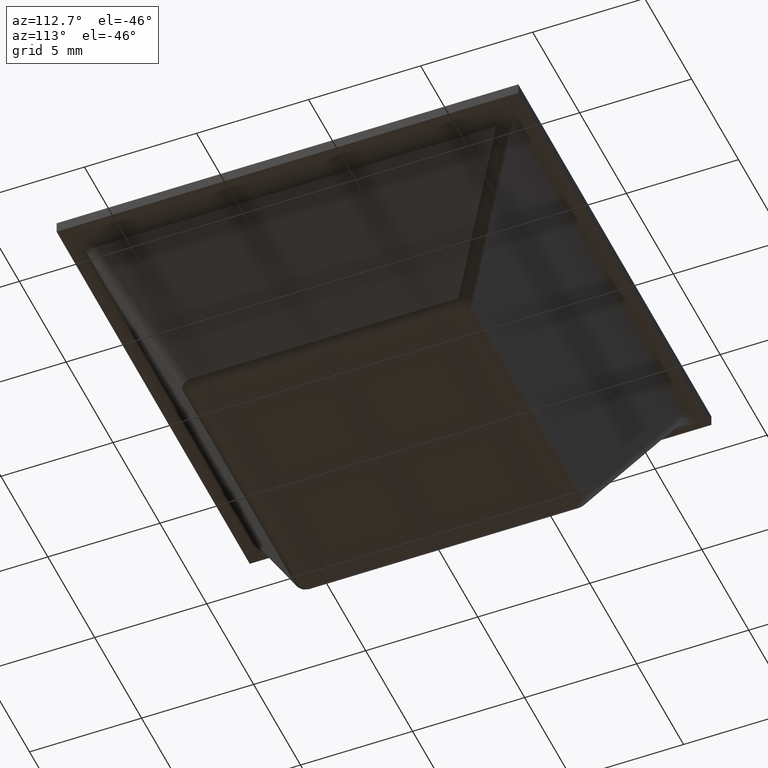
[diagram: clean part render]
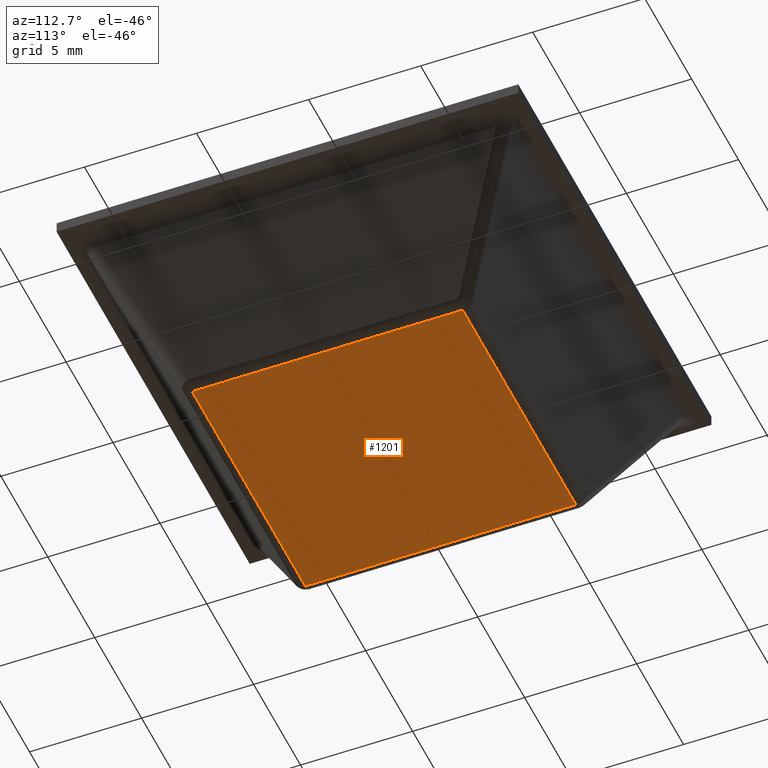
[diagram: same view with one face highlighted and labeled with its STEP entity id]
A machine part, auxiliary view. The second image highlights one B-rep face of the part: STEP entity #1201.
In plain terms, the highlighted face is a freeform B-spline surface patch.
Its self-contained STEP definition (entity closure, byte-faithful):
#85=CARTESIAN_POINT('',(6.031465045455790,-6.031465045455790,0.0));
#86=VERTEX_POINT('',#85);
#249=CARTESIAN_POINT('',(-6.031465045455790,-6.031465045455790,0.0));
#250=VERTEX_POINT('',#249);
#555=CARTESIAN_POINT('',(-6.031465045455790,6.031465045455790,0.0));
#556=VERTEX_POINT('',#555);
#736=CARTESIAN_POINT('',(6.031465045455790,6.031465045455790,0.0));
#737=VERTEX_POINT('',#736);
#904=CARTESIAN_POINT('',(-6.031465045455790,6.031465045455790,0.0));
#905=CARTESIAN_POINT('',(6.031465045455790,6.031465045455790,0.0));
#906=QUASI_UNIFORM_CURVE('',1,(#904,#905),.UNSPECIFIED.,.F.,.U.);
#907=EDGE_CURVE('',#556,#737,#906,.T.);
#927=CARTESIAN_POINT('',(6.031465045455790,6.031465045455790,0.0));
#928=CARTESIAN_POINT('',(6.031465045455790,-6.031465045455790,0.0));
#929=QUASI_UNIFORM_CURVE('',1,(#927,#928),.UNSPECIFIED.,.F.,.U.);
#930=EDGE_CURVE('',#737,#86,#929,.T.);
#962=CARTESIAN_POINT('',(-6.031465045455790,-6.031465045455790,0.0));
#963=CARTESIAN_POINT('',(-6.031465045455790,6.031465045455790,0.0));
#964=QUASI_UNIFORM_CURVE('',1,(#962,#963),.UNSPECIFIED.,.F.,.U.);
#965=EDGE_CURVE('',#250,#556,#964,.T.);
#991=CARTESIAN_POINT('',(6.031465045455790,-6.031465045455790,0.0));
#992=CARTESIAN_POINT('',(-6.031465045455790,-6.031465045455790,0.0));
#993=QUASI_UNIFORM_CURVE('',1,(#991,#992),.UNSPECIFIED.,.F.,.U.);
#994=EDGE_CURVE('',#86,#250,#993,.T.);
#1190=CARTESIAN_POINT('',(-6.634008380116526,-6.634008380116526,0.0));
#1191=CARTESIAN_POINT('',(6.634008703669524,-6.634008380116526,0.0));
#1192=CARTESIAN_POINT('',(-6.634008380116526,6.634008703669523,0.0));
#1193=CARTESIAN_POINT('',(6.634008703669524,6.634008703669523,0.0));
#1194=B_SPLINE_SURFACE_WITH_KNOTS('',1,1,((#1190,#1192),(#1191,#1193)),.UNSPECIFIED.,.F.,.F.,.U.,(2,2),(2,2),(0.0,13.268017083786050),(0.0,13.268017083786050),.UNSPECIFIED.);
#1195=ORIENTED_EDGE('',*,*,#965,.T.);
#1196=ORIENTED_EDGE('',*,*,#907,.T.);
#1197=ORIENTED_EDGE('',*,*,#930,.T.);
#1198=ORIENTED_EDGE('',*,*,#994,.T.);
#1199=EDGE_LOOP('',(#1195,#1196,#1197,#1198));
#1200=FACE_OUTER_BOUND('',#1199,.T.);
#1201=ADVANCED_FACE('',(#1200),#1194,.F.);